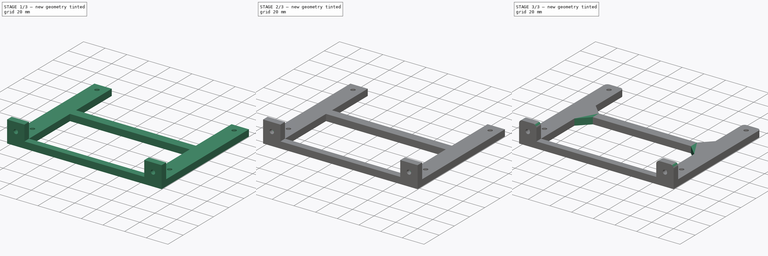
[diagram: build sequence overview — one tinted view per stage of 3, left to right]
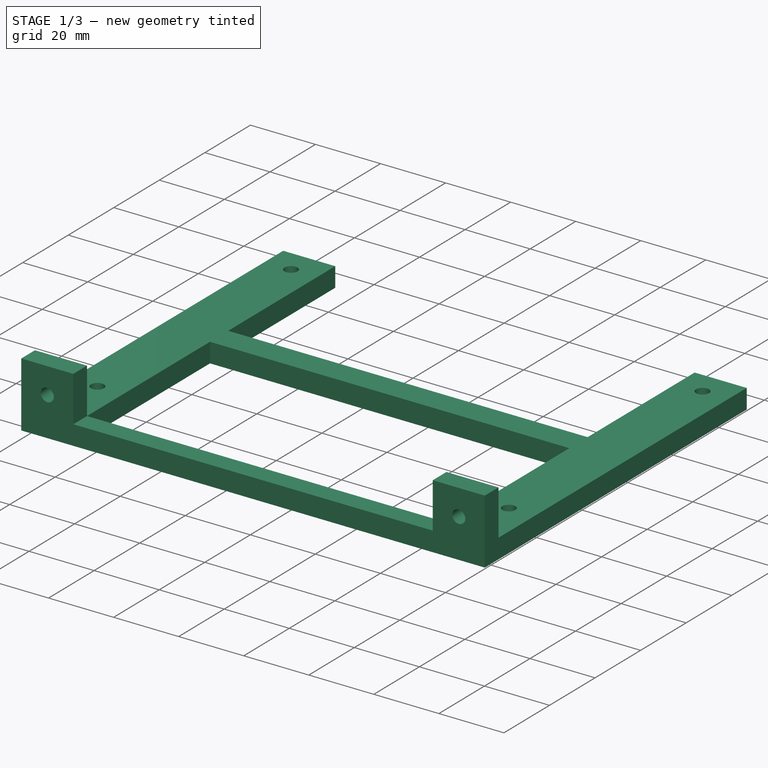
[diagram: stage 1 of 3 — iso view after this stage's code; geometry added in this stage tinted green]
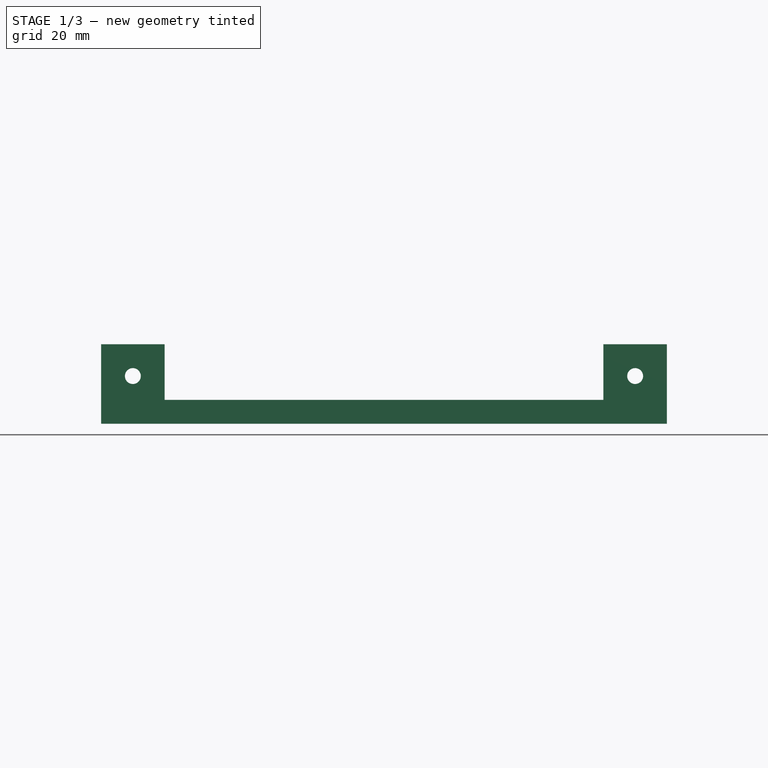
[diagram: stage 1 of 3 — front view after this stage's code; geometry added in this stage tinted green]
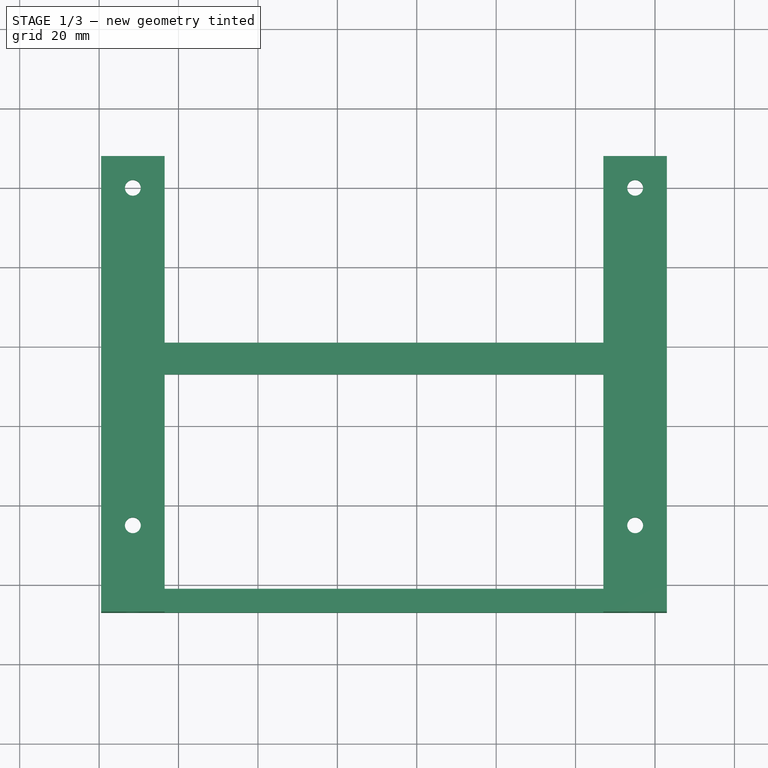
[diagram: stage 1 of 3 — top view after this stage's code; geometry added in this stage tinted green]
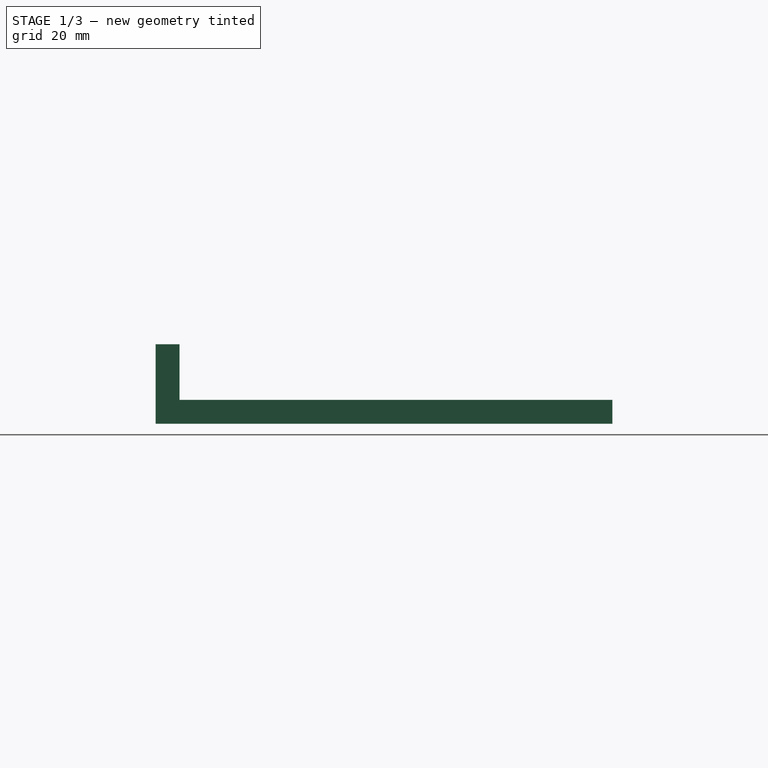
[diagram: stage 1 of 3 — right view after this stage's code; geometry added in this stage tinted green]
FCSTD DOCUMENT  (FreeCAD 0.20R29177 (Git))
Label: monturaFuente
License: All rights reserved
LicenseURL: http://en.wikipedia.org/wiki/All_rights_reserved
objects: Sketcher::SketchObject×4, PartDesign::Plane×3, PartDesign::Chamfer×3, PartDesign::Pad×2, Spreadsheet::Sheet×1, PartDesign::Hole×1, PartDesign::Pocket×1, PartDesign::Fillet×1, PartDesign::Body×1
note: 24 computed .brp shape members not serialized (recipe doc carries the construction recipe); baked Part::Feature solids carry a one-line shape summary decoded from their .brp

FEATURE [PartDesign::Plane] DatumPlane
  Length = 197.896
  MapMode = 2
  ResizeMode = 0
  Width = 162.896
FEATURE [Sketcher::SketchObject] Sketch
  FullyConstrained = false
  MapMode = 5
  Support = -> [XY_Plane]
  expr: Constraints[19] = Spreadsheet.tolerancia
  expr: Constraints[26] = Spreadsheet.espesor
  sketch-geometry (17):
    g0: Circle CenterX=8.5 CenterY=15 CenterZ=0 NormalX=0 NormalY=0 NormalZ=1 AngleXU=0 Radius=2
    g1: Circle CenterX=8.5 CenterY=100 CenterZ=0 NormalX=0 NormalY=0 NormalZ=1 AngleXU=0 Radius=2
    g2: Circle CenterX=135 CenterY=15 CenterZ=0 NormalX=0 NormalY=0 NormalZ=1 AngleXU=0 Radius=2
    g3: Circle CenterX=135 CenterY=100 CenterZ=0 NormalX=0 NormalY=0 NormalZ=1 AngleXU=0 Radius=2
    g4: LineSegment StartX=16.5 StartY=-1 StartZ=0 EndX=127 EndY=-1 EndZ=0
    g5: LineSegment StartX=143 StartY=-7 StartZ=0 EndX=0.5 EndY=-7 EndZ=0
    g6: LineSegment StartX=16.5 StartY=108 StartZ=0 EndX=0.5 EndY=108 EndZ=0
    g7: LineSegment StartX=0.5 StartY=-7 StartZ=0 EndX=0.5 EndY=108 EndZ=0
    g8: LineSegment StartX=127 StartY=108 StartZ=0 EndX=143 EndY=108 EndZ=0
    g9: LineSegment StartX=143 StartY=108 StartZ=0 EndX=143 EndY=-7 EndZ=0
    g10: LineSegment StartX=16.5 StartY=108 StartZ=0 EndX=127 EndY=108 EndZ=0
    g11: LineSegment StartX=16.5 StartY=108 StartZ=0 EndX=16.5 EndY=61 EndZ=0
    g12: LineSegment StartX=16.5 StartY=61 StartZ=0 EndX=127 EndY=61 EndZ=0
    g13: LineSegment StartX=127 StartY=108 StartZ=0 EndX=127 EndY=61 EndZ=0
    g14: LineSegment StartX=16.5 StartY=-1 StartZ=0 EndX=16.5 EndY=53 EndZ=0
    g15: LineSegment StartX=16.5 StartY=53 StartZ=0 EndX=127 EndY=53 EndZ=0
    g16: LineSegment StartX=127 StartY=-1 StartZ=0 EndX=127 EndY=53 EndZ=0
  constraints (49):
    c: DistanceY(g-1,g0) = 15
    c: DistanceX(g-1,g0) = 8.5
    c: DistanceY(g-1,g1) = 100
    c: DistanceX(g-1,g1) = 8.5
    c: DistanceX(g-1,g2) = 135
    c: DistanceY(g-1,g2) = 15
    c: DistanceX(g-1,g3) = 135
    c: DistanceY(g-1,g3) = 100
    c: Equal(g0,g2)
    c: Equal(g2,g3)
    c: Equal(g3,g1)
    c: Horizontal(g4)
    c: Horizontal(g5)
    c: Horizontal(g6)
    c: Vertical(g7)
    c: Coincident(g6,g7)
    c: Coincident(g8,g9)
    c: Horizontal(g8)
    c: Vertical(g9)
    c: DistanceY(g4,g-1) = 1
    c: Coincident(g7,g5)
    c: DistanceX(g5,g0) = 8
    c: DistanceX(g0,g4) = 8
    c: Coincident(g9,g5)
    c: DistanceX(g2,g5) = 8
    c: DistanceX(g4,g2) = 8
    c: DistanceY(g5,g4) = 6
    c: DistanceY(g1,g6) = 8
    c: DistanceY(g3,g8) = 8
    c: Coincident(g10,g8)
    c: Coincident(g11,g6)
    c: Vertical(g11)
    c: Horizontal(g12)
    c: Coincident(g13,g8)
    c: Vertical(g13)
    c: Coincident(g14,g4)
    c: Vertical(g14)
    c: Horizontal(g15)
    c: Coincident(g16,g4)
    c: Vertical(g16)
    c: Coincident(g15,g14)
    c: Coincident(g12,g11)
    c: Coincident(g15,g16)
    c: Coincident(g13,g12)
    c: DistanceY(g4,g14) = 54
    c: DistanceX(g6,g11) = 16
    c: DistanceX(g12,g8) = 16
    c: DistanceY(g15,g12) = 8
    c: Diameter(g0) = 4
FEATURE [Spreadsheet::Sheet] Spreadsheet
  cells = A1=Nombre; B1=Valor; A2=tornilloM3; B2(tornilloM3)=3; A3=tolerancia; B3(tolerancia)=1; A4=M3ytol; B4(M3ytol)==B2 + B3; A5=espesor; B5(espesor)=6
FEATURE [PartDesign::Pad] Pad
  Direction = (0,0,1)
  Length = 6
  Length2 = 10
  Profile = -> Sketch
  ReferenceAxis = -> Sketch [N_Axis]
  Type = 0
  expr: Length = Spreadsheet.espesor
FEATURE [PartDesign::Plane] DatumPlane001
  Length = 197.896
  MapMode = 5
  Placement = pos=(0,0,6) rot=(0,0,1;0rad)
  ResizeMode = 0
  Support = -> [Pad]
  Width = 162.896
FEATURE [Sketcher::SketchObject] Sketch001
  ExternalGeometry = -> [Pad]
  FullyConstrained = true
  MapMode = 5
  Placement = pos=(0,0,6) rot=(0,0,1;0rad)
  Support = -> [Pad]
  sketch-geometry (12):
    g0: LineSegment StartX=16.5 StartY=-1 StartZ=0 EndX=0.5 EndY=-1 EndZ=0
    g1: LineSegment StartX=0.5 StartY=-7 StartZ=0 EndX=0.5 EndY=-1 EndZ=0
    g2: LineSegment StartX=127 StartY=-1 StartZ=0 EndX=143 EndY=-1 EndZ=0
    g3: LineSegment StartX=143 StartY=-7 StartZ=0 EndX=143 EndY=-1 EndZ=0
    g4: LineSegment StartX=143 StartY=-7 StartZ=0 EndX=143 EndY=-1 EndZ=0
    g5: LineSegment StartX=143 StartY=-1 StartZ=0 EndX=127 EndY=-1 EndZ=0
    g6: LineSegment StartX=127 StartY=-1 StartZ=0 EndX=127 EndY=-7 EndZ=0
    g7: LineSegment StartX=143 StartY=-7 StartZ=0 EndX=127 EndY=-7 EndZ=0
    g8: LineSegment StartX=0.5 StartY=-1 StartZ=0 EndX=16.5 EndY=-1 EndZ=0
    g9: LineSegment StartX=16.5 StartY=-1 StartZ=0 EndX=16.5 EndY=-7 EndZ=0
    g10: LineSegment StartX=16.5 StartY=-7 StartZ=0 EndX=0.5 EndY=-7 EndZ=0
    g11: LineSegment StartX=0.5 StartY=-1 StartZ=0 EndX=0.5 EndY=-7 EndZ=0
  constraints (28):
    c: Coincident(g0,g-3)
    c: Horizontal(g0)
    c: Coincident(g1,g-4)
    c: Vertical(g1)
    c: Coincident(g0,g1)
    c: Coincident(g2,g-3)
    c: Horizontal(g2)
    c: Coincident(g3,g-4)
    c: Vertical(g3)
    c: Coincident(g2,g3)
    c: Coincident(g4,g3)
    c: Coincident(g4,g2)
    c: Coincident(g5,g4)
    c: Coincident(g5,g2)
    c: Coincident(g6,g5)
    c: Vertical(g6)
    c: Coincident(g7,g4)
    c: Coincident(g8,g0)
    c: Coincident(g8,g0)
    c: Coincident(g9,g8)
    c: PointOnObject(g9,g-4)
    c: Vertical(g9)
    c: Coincident(g10,g9)
    c: Coincident(g10,g1)
    c: Coincident(g11,g8)
    c: Coincident(g11,g10)
    c: Coincident(g6,g7)
    c: Horizontal(g7)
FEATURE [PartDesign::Pad] Pad001
  BaseFeature = -> Pad
  Direction = (0,0,1)
  Length = 14
  Length2 = 10
  Profile = -> Sketch001
  ReferenceAxis = -> Sketch001 [N_Axis]
  Type = 0
FEATURE [PartDesign::Plane] DatumPlane002
  Length = 186.33
  MapMode = 5
  Placement = pos=(0,-1,0) rot=(0,0.707107,0.707107;3.14159rad)
  ResizeMode = 0
  Support = -> [Pad001]
  Width = 68.3303
FEATURE [Sketcher::SketchObject] Sketch002
  ExternalGeometry = -> [Pad001]
  FullyConstrained = true
  MapMode = 5
  Placement = pos=(0,-1,0) rot=(0,0.707107,0.707107;3.14159rad)
  Support = -> [DatumPlane002]
  expr: Constraints[5] = Spreadsheet.M3ytol
  sketch-geometry (2):
    g0: Circle CenterX=-135 CenterY=12 CenterZ=0 NormalX=0 NormalY=0 NormalZ=1 AngleXU=0 Radius=2
    g1: Circle CenterX=-8.5 CenterY=12 CenterZ=0 NormalX=0 NormalY=0 NormalZ=1 AngleXU=0 Radius=2
  constraints (6):
    c: DistanceX(g-4,g0) = 8
    c: DistanceX(g-5,g1) = 8
    c: DistanceY(g0,g-3) = 8
    c: DistanceY(g1,g-6) = 8
    c: Equal(g0,g1)
    c: Diameter(g0) = 4
FEATURE [PartDesign::Hole] Hole
  BaseFeature = -> Pad001
  CustomThreadClearance = 0
  Depth = 24
  DepthType = 0
  Diameter = 4
  DrillForDepth = false
  DrillPoint = 1
  DrillPointAngle = 118
  HoleCutCountersinkAngle = 90
  HoleCutCustomValues = false
  HoleCutDepth = 0
  HoleCutDiameter = 6.1
  HoleCutType = 0
  ModelThread = false
  Profile = -> Sketch002
  Tapered = false
  TaperedAngle = 90
  ThreadClass = 0
  ThreadDepth = 24
  ThreadDepthType = 0
  ThreadDirection = 0
  ThreadFit = 0
  ThreadSize = 0
  ThreadType = 0
  Threaded = false
  UseCustomThreadClearance = false
  expr: Diameter = Spreadsheet.M3ytol
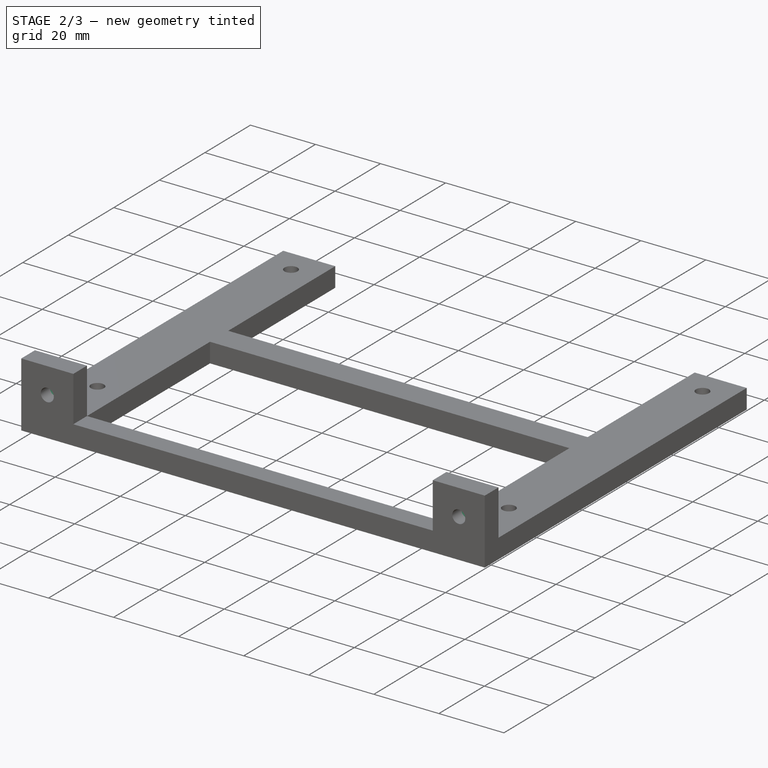
[diagram: stage 2 of 3 — iso view after this stage's code; geometry added in this stage tinted green]
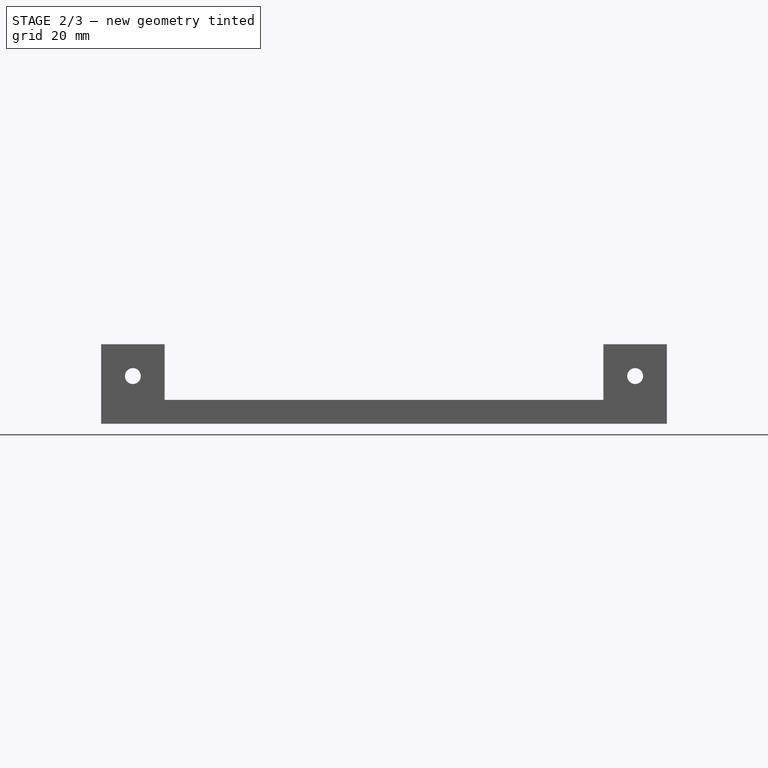
[diagram: stage 2 of 3 — front view after this stage's code; geometry added in this stage tinted green]
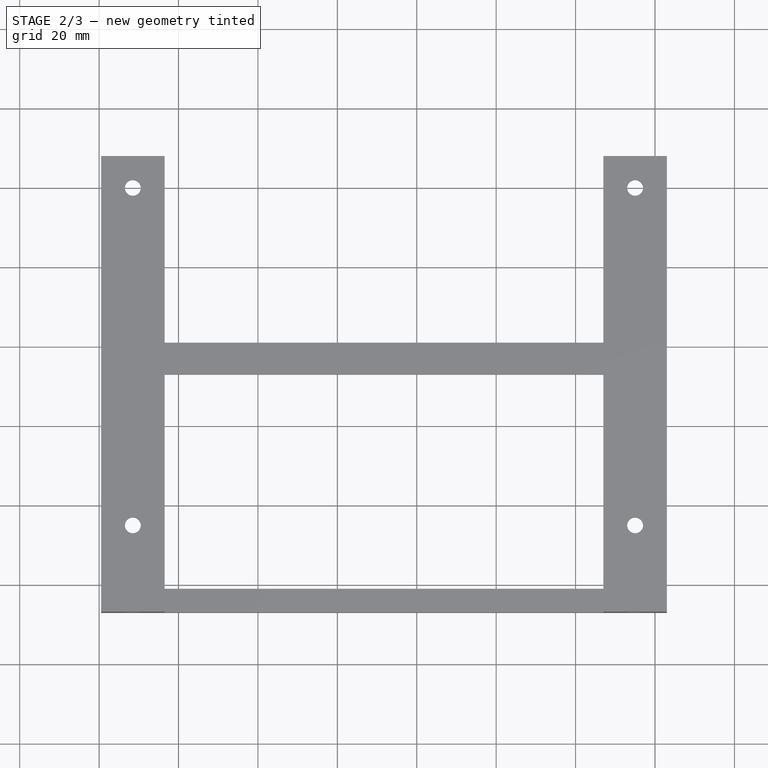
[diagram: stage 2 of 3 — top view after this stage's code; geometry added in this stage tinted green]
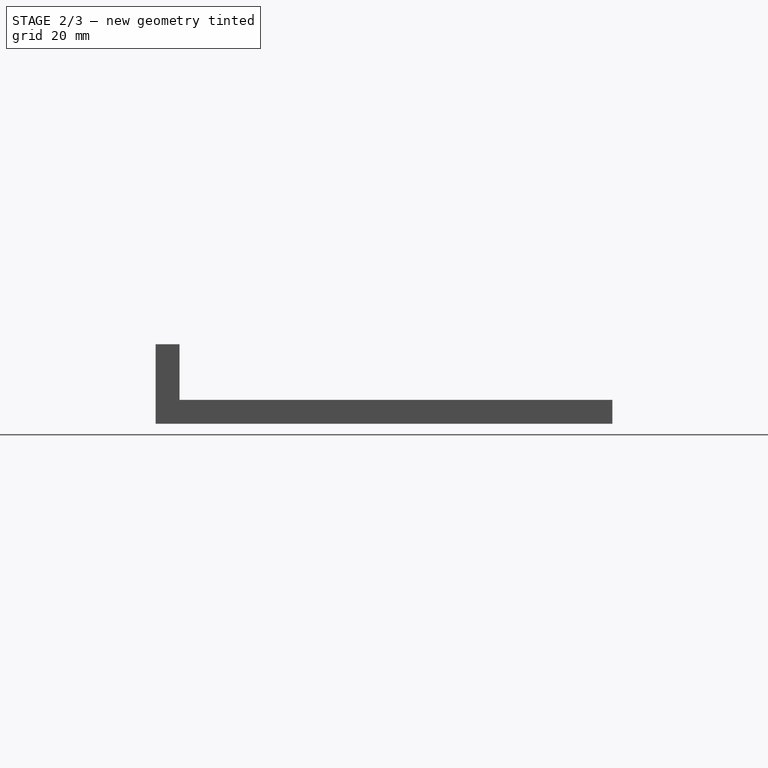
[diagram: stage 2 of 3 — right view after this stage's code; geometry added in this stage tinted green]
FEATURE [Sketcher::SketchObject] Sketch003
  ExternalGeometry = -> [Hole]
  FullyConstrained = true
  MapMode = 5
  Placement = pos=(0,-1,0) rot=(0,0.707107,0.707107;3.14159rad)
  Support = -> [Hole]
  sketch-geometry (2):
    g0: Circle CenterX=-135 CenterY=12 CenterZ=0 NormalX=0 NormalY=0 NormalZ=1 AngleXU=0 Radius=3
    g1: Circle CenterX=-8.5 CenterY=12 CenterZ=0 NormalX=0 NormalY=0 NormalZ=1 AngleXU=0 Radius=3
  constraints (4):
    c: Coincident(g0,g-3)
    c: Coincident(g1,g-4)
    c: Equal(g0,g1)
    c: Diameter(g0) = 6
FEATURE [PartDesign::Pocket] Pocket
  BaseFeature = -> Hole
  Direction = (0,-1,2e-16)
  Length = 2
  Length2 = 5
  Profile = -> Sketch003
  ReferenceAxis = -> Sketch003 [N_Axis]
  Type = 0
FEATURE [PartDesign::Chamfer] Chamfer
  Angle = 45
  Base = -> Pocket [Edge24,Edge23,Edge22,Edge21]
  BaseFeature = -> Pocket
  ChamferType = 0
  FlipDirection = false
  Size = 1
  Size2 = 1
  SupportTransform = false
  UseAllEdges = false
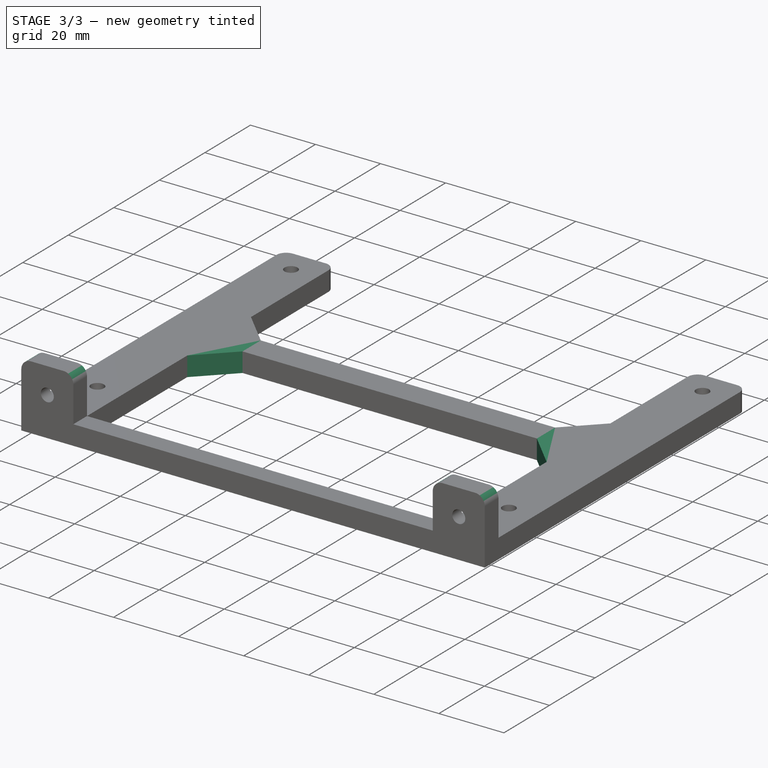
[diagram: stage 3 of 3 — iso view after this stage's code; geometry added in this stage tinted green]
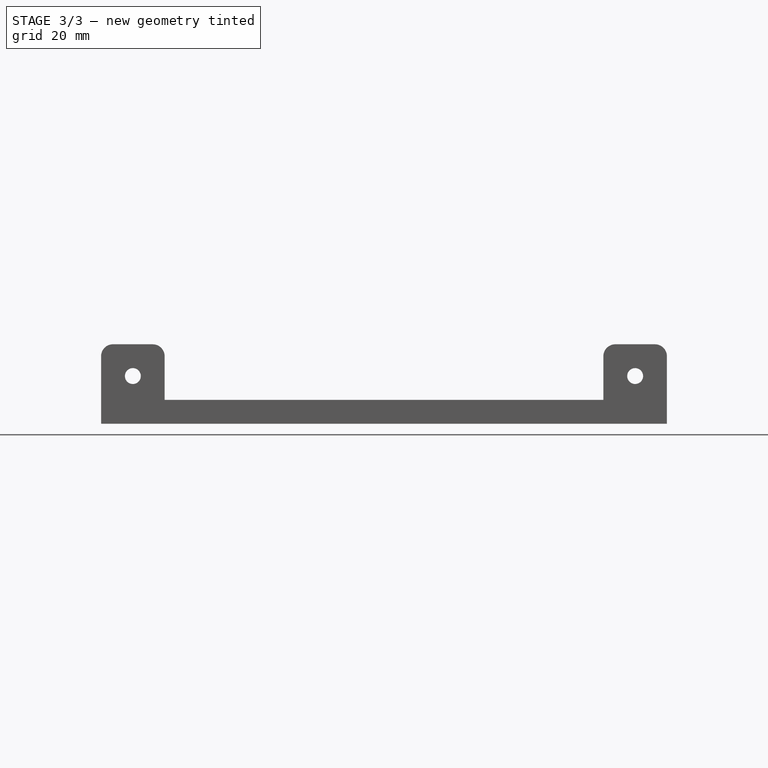
[diagram: stage 3 of 3 — front view after this stage's code; geometry added in this stage tinted green]
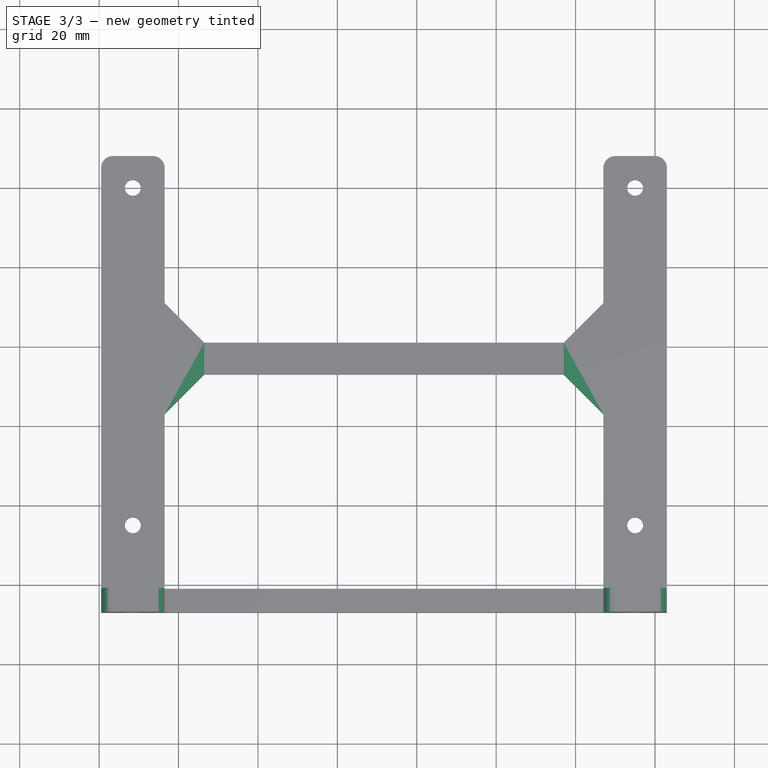
[diagram: stage 3 of 3 — top view after this stage's code; geometry added in this stage tinted green]
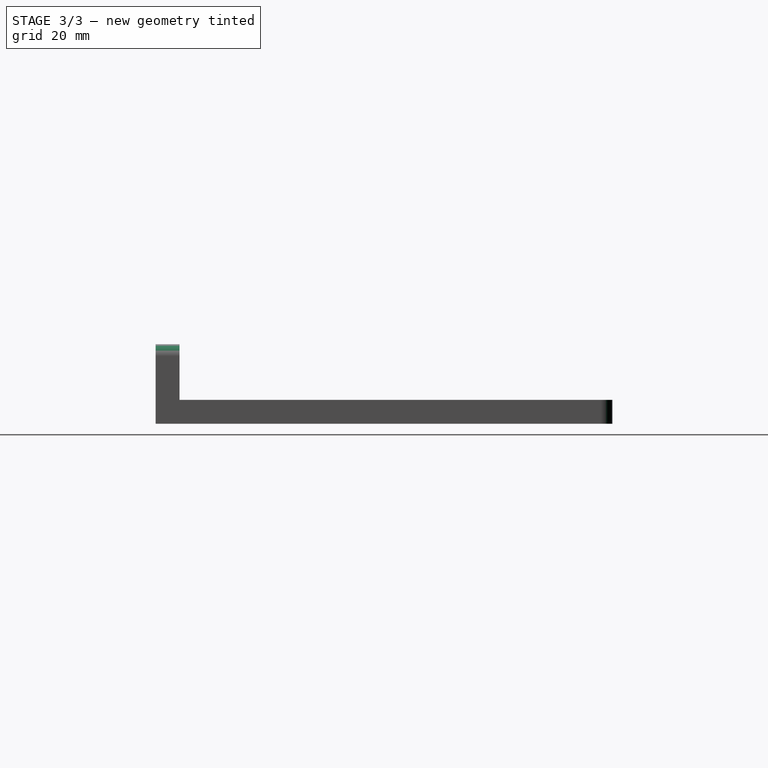
[diagram: stage 3 of 3 — right view after this stage's code; geometry added in this stage tinted green]
FEATURE [PartDesign::Chamfer] Chamfer001
  Angle = 45
  Base = -> Chamfer [Edge82,Edge79]
  BaseFeature = -> Chamfer
  ChamferType = 0
  FlipDirection = false
  Size = 1
  Size2 = 1
  SupportTransform = false
  UseAllEdges = false
FEATURE [PartDesign::Fillet] Fillet
  Base = -> Chamfer001 [Edge51,Edge54,Edge37,Edge34,Edge84,Edge85,Edge26,Edge10]
  BaseFeature = -> Chamfer001
  Radius = 3
  SupportTransform = false
  UseAllEdges = false
FEATURE [PartDesign::Chamfer] Chamfer002  label="Final"
  Angle = 45
  Base = -> Fillet [Edge53,Edge62,Edge52,Edge58]
  BaseFeature = -> Fillet
  ChamferType = 0
  FlipDirection = false
  Size = 10
  Size2 = 1
  SupportTransform = false
  UseAllEdges = false
FEATURE [PartDesign::Body] Body
  Group = -> [DatumPlane,Sketch,Pad,DatumPlane001,Sketch001,Pad001,DatumPlane002,Sketch002,Hole,Sketch003,Pocket,Chamfer,Chamfer001,Fillet,Chamfer002]
  Origin = -> Origin
  Tip = -> Chamfer002
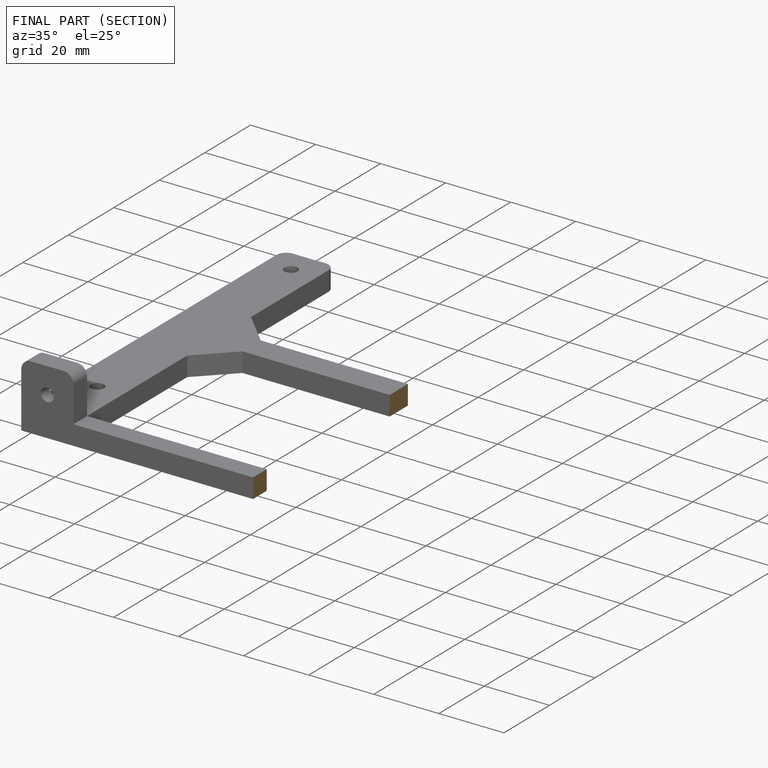
[diagram: finished part — half-section view (interior)]
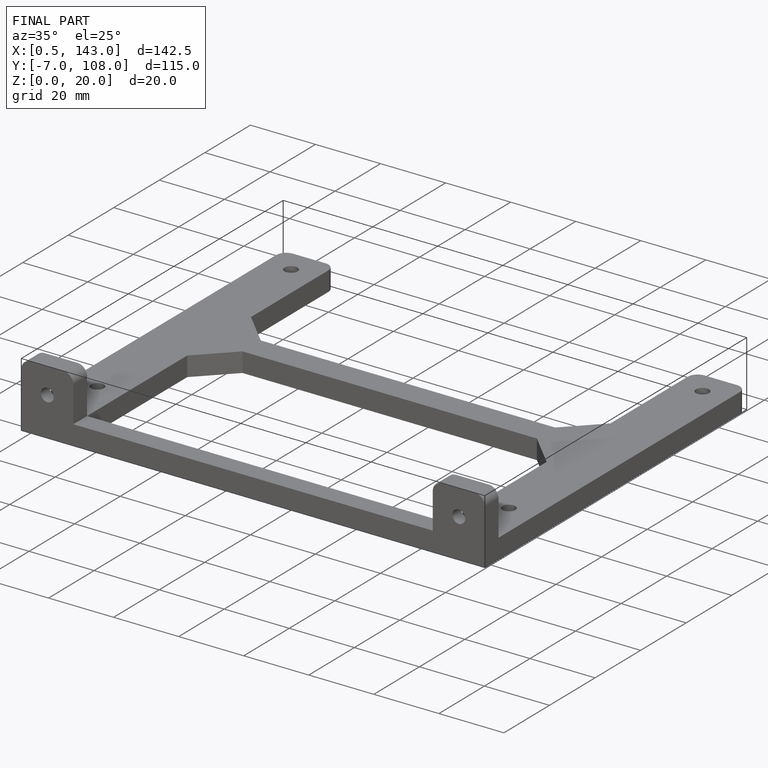
[diagram: finished part — iso view with bounding-box wireframe]
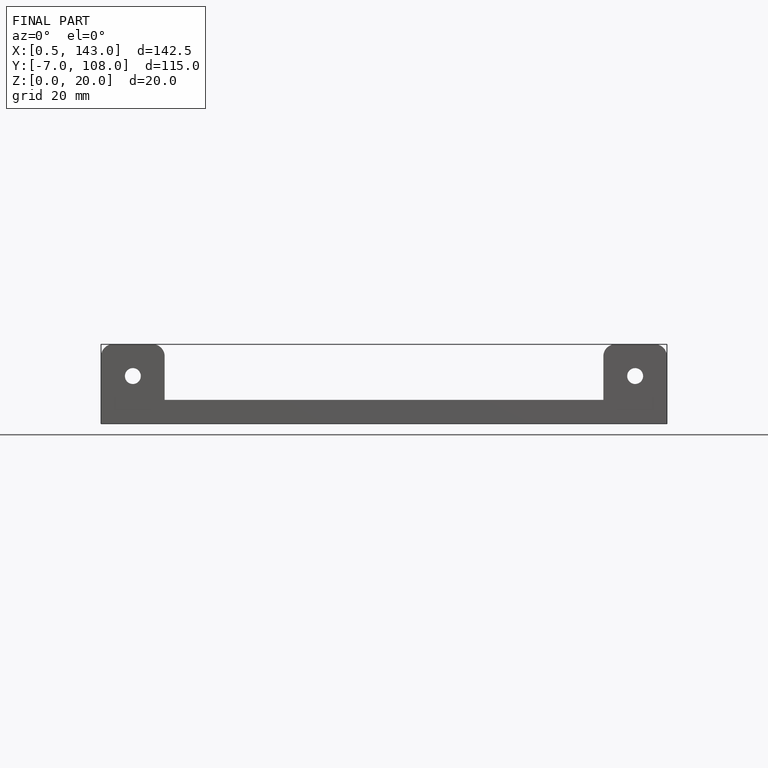
[diagram: finished part — front view with bounding-box wireframe]
